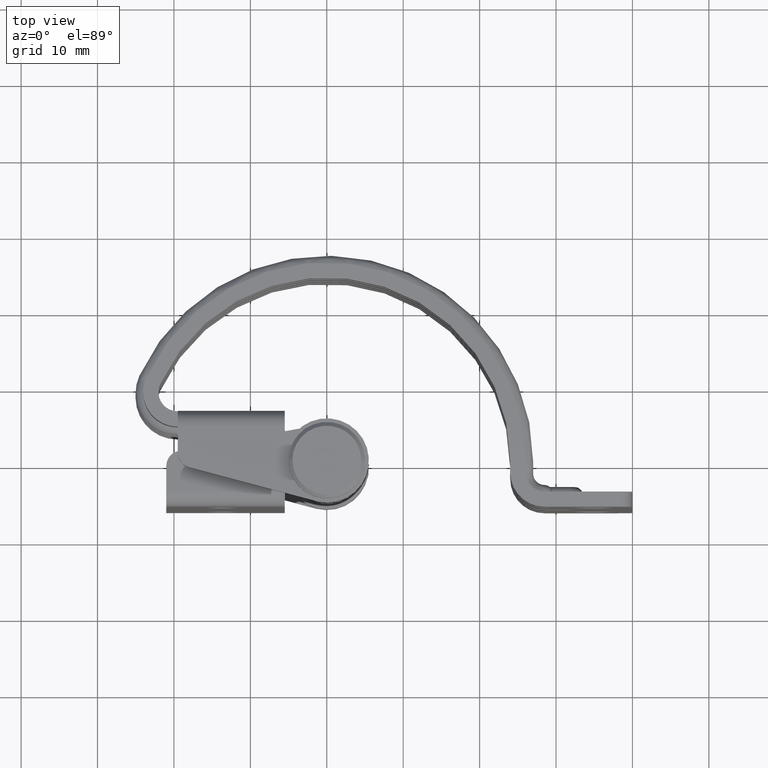
[diagram: clean part render]
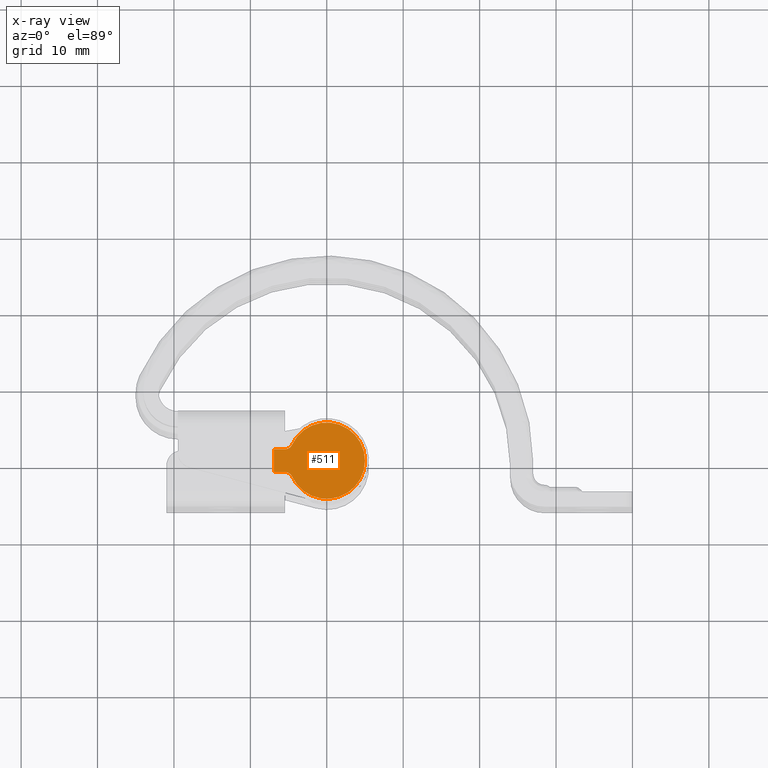
[diagram: x-ray — body ghosted, one internal face saturated and labeled with its STEP entity id]
A machine part, top view, then the same camera in x-ray: the body is ghosted and one INTERNAL B-rep face — a face not visible from any outside direction — is saturated and labeled: STEP entity #511.
In plain terms, the highlighted planar face has unit normal (0, 0, 1).
Its self-contained STEP definition (entity closure, byte-faithful):
#511=ADVANCED_FACE('',(#4565),#4564,.T.);
#4564=PLANE('',#8764);
#4565=FACE_OUTER_BOUND('',#8765,.T.);
#8761=CARTESIAN_POINT('',(-8.39838185801E+00,9.42923272628E+00,2.60000000000E+01));
#8762=DIRECTION('',(0.00000000000E+00,0.00000000000E+00,1.00000000000E+00));
#8763=DIRECTION('',(0.00000000000E+00,-1.00000000000E+00,0.00000000000E+00));
#8764=AXIS2_PLACEMENT_3D('',#8761,#8762,#8763);
#8765=EDGE_LOOP('',(#10818,#10819,#10820,#10821,#10822,#10823));
#10818=ORIENTED_EDGE('',*,*,#11914,.T.);
#10819=ORIENTED_EDGE('',*,*,#11915,.F.);
#10820=ORIENTED_EDGE('',*,*,#11912,.F.);
#10821=ORIENTED_EDGE('',*,*,#11916,.F.);
#10822=ORIENTED_EDGE('',*,*,#11917,.T.);
#10823=ORIENTED_EDGE('',*,*,#11918,.F.);
#11912=EDGE_CURVE('',#18432,#18439,#18440,.T.);
#11914=EDGE_CURVE('',#18452,#18453,#18454,.T.);
#11915=EDGE_CURVE('',#18439,#18453,#18460,.T.);
#11916=EDGE_CURVE('',#18466,#18432,#18467,.T.);
#11917=EDGE_CURVE('',#18466,#18473,#18474,.T.);
#11918=EDGE_CURVE('',#18452,#18473,#18480,.T.);
#18432=VERTEX_POINT('',#22921);
#18439=VERTEX_POINT('',#22926);
#18440=LINE('',#22927,#22928);
#18452=VERTEX_POINT('',#22934);
#18453=VERTEX_POINT('',#22935);
#18454=CIRCLE('',#22939,1.00000000000E+00);
#18460=LINE('',#22940,#22941);
#18466=VERTEX_POINT('',#22943);
#18467=LINE('',#22944,#22945);
#18473=VERTEX_POINT('',#22947);
#18474=CIRCLE('',#22951,1.00000000000E+00);
#18480=CIRCLE('',#22955,5.00000000000E+00);
#22921=CARTESIAN_POINT('',(-6.90000000000E+00,-1.50000000000E+00,2.60000000000E+01));
#22926=CARTESIAN_POINT('',(-6.90000000000E+00,1.50000000000E+00,2.60000000000E+01));
#22927=CARTESIAN_POINT('',(-6.90000000000E+00,-1.50000000000E+00,2.60000000000E+01));
#22928=VECTOR('',#22929,3.00000000000E+00);
#22929=DIRECTION('',(0.00000000000E+00,1.00000000000E+00,0.00000000000E+00));
#22934=CARTESIAN_POINT('',(-4.54529671443E+00,2.08333333334E+00,2.60000000000E+01));
#22935=CARTESIAN_POINT('',(-5.45435605732E+00,1.50000000000E+00,2.60000000000E+01));
#22936=CARTESIAN_POINT('',(-5.45435605732E+00,2.50000000000E+00,2.60000000000E+01));
#22937=DIRECTION('',(-3.01167270132E-16,-6.57069409648E-16,-1.00000000000E+00));
#22938=DIRECTION('',(-9.09059342887E-01,4.16666666664E-01,-1.47911419729E-31));
#22939=AXIS2_PLACEMENT_3D('',#22936,#22937,#22938);
#22940=CARTESIAN_POINT('',(-6.90000000000E+00,1.50000000000E+00,2.60000000000E+01));
#22941=VECTOR('',#22942,1.44564394268E+00);
#22942=DIRECTION('',(1.00000000000E+00,7.67978194247E-16,0.00000000000E+00));
#22943=CARTESIAN_POINT('',(-5.45435605732E+00,-1.50000000000E+00,2.60000000000E+01));
#22944=CARTESIAN_POINT('',(-5.45435605732E+00,-1.50000000000E+00,2.60000000000E+01));
#22945=VECTOR('',#22946,1.44564394268E+00);
#22946=DIRECTION('',(-1.00000000000E+00,3.31766579915E-14,0.00000000000E+00));
#22947=CARTESIAN_POINT('',(-4.54529671443E+00,-2.08333333333E+00,2.60000000000E+01));
#22948=CARTESIAN_POINT('',(-5.45435605732E+00,-2.50000000000E+00,2.60000000000E+01));
#22949=DIRECTION('',(7.22801448325E-16,-1.27111376330E-28,-1.00000000000E+00));
#22950=DIRECTION('',(-1.75859327101E-13,-1.00000000000E+00,-8.96831017168E-44));
#22951=AXIS2_PLACEMENT_3D('',#22948,#22949,#22950);
#22952=CARTESIAN_POINT('',(1.24477129742E-43,0.00000000000E+00,2.60000000000E+01));
#22953=DIRECTION('',(0.00000000000E+00,0.00000000000E+00,-1.00000000000E+00));
#22954=DIRECTION('',(-1.00000000000E+00,-0.00000000000E+00,-0.00000000000E+00));
#22955=AXIS2_PLACEMENT_3D('',#22952,#22953,#22954);